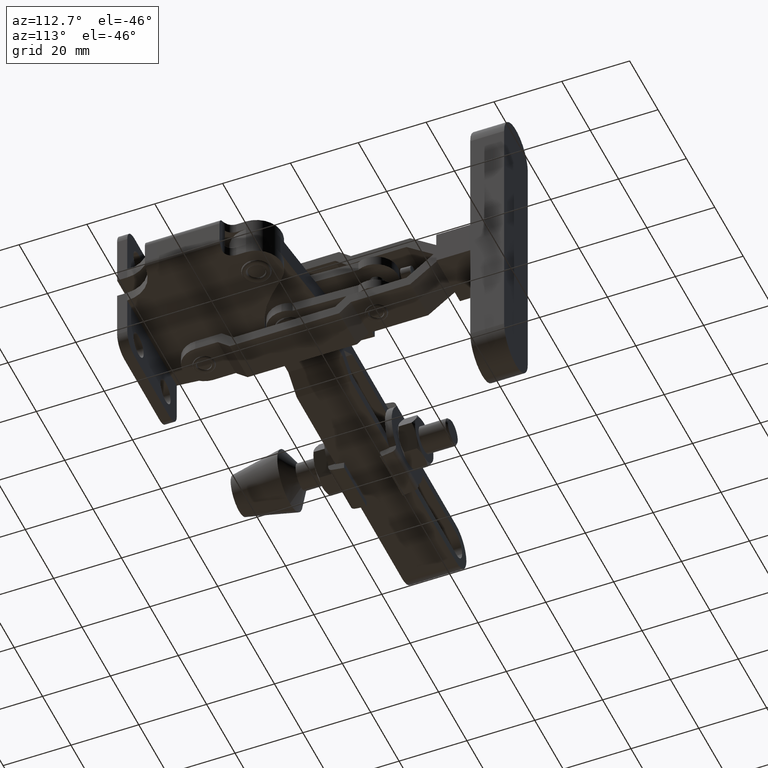
[diagram: clean part render]
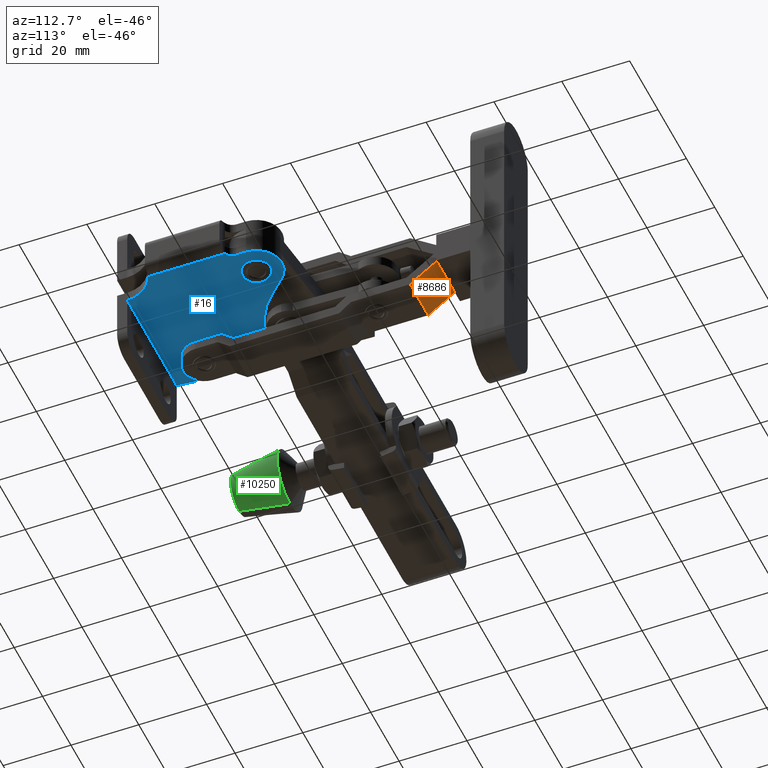
[diagram: same view with three faces highlighted in distinct colors, each labeled with its STEP entity id]
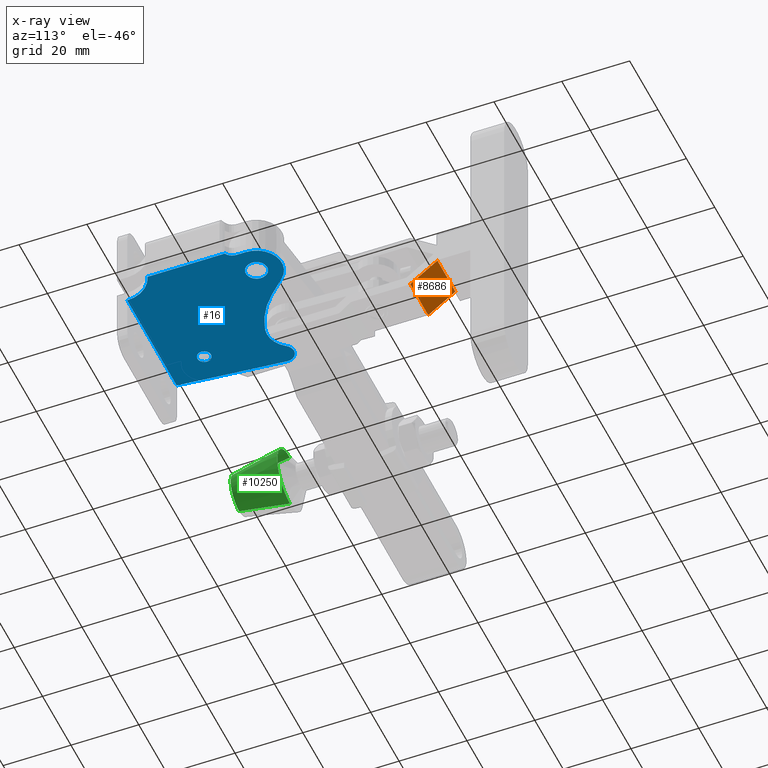
[diagram: x-ray of the same camera — body ghosted, the three highlighted faces saturated]
A machine part, auxiliary view with three faces highlighted in distinct colors.
The next image is the same camera in x-ray (body ghosted, the three faces saturated) — at least one of them is partly hidden behind the body in this view.
Their STEP definitions:

[orange] entity #8686 — the highlighted planar face has unit normal (-0, 0.6, -0.8).
#108 = EDGE_LOOP ( 'NONE', ( #10849, #278, #262, #10062 ) ) ;
#262 = ORIENTED_EDGE ( 'NONE', *, *, #3613, .T. ) ;
#278 = ORIENTED_EDGE ( 'NONE', *, *, #4626, .F. ) ;
#288 = DIRECTION ( 'NONE',  ( -1.000000000000000000, 0.0000000000000000000, 1.658530013599391000E-018 ) ) ;
#435 = CARTESIAN_POINT ( 'NONE',  ( -30.45000000000017300, 85.48999999999986700, -3.000000000000014200 ) ) ;
#799 = VERTEX_POINT ( 'NONE', #907 ) ;
#907 = CARTESIAN_POINT ( 'NONE',  ( -30.45000000000017300, 85.48999999999986700, -3.000000000000014200 ) ) ;
#1060 = FACE_OUTER_BOUND ( 'NONE', #108, .T. ) ;
#1260 = VECTOR ( 'NONE', #288, 1000.000000000000000 ) ;
#1384 = CARTESIAN_POINT ( 'NONE',  ( -30.45000000000017300, 77.49000000000022200, -9.000000000000012400 ) ) ;
#1441 = CARTESIAN_POINT ( 'NONE',  ( -30.45000000000017300, 10.21461866664727400, -59.45653600001685400 ) ) ;
#2063 = VERTEX_POINT ( 'NONE', #5368 ) ;
#2276 = DIRECTION ( 'NONE',  ( -9.951180081596616200E-019, -0.7999999999999878300, -0.6000000000000161900 ) ) ;
#2336 = CARTESIAN_POINT ( 'NONE',  ( -30.45000000000017300, 77.49000000000022200, -9.000000000000012400 ) ) ;
#2382 = DIRECTION ( 'NONE',  ( -1.000000000000000000, 0.0000000000000000000, 1.658530013599391000E-018 ) ) ;
#2540 = LINE ( 'NONE', #4751, #4537 ) ;
#2884 = VECTOR ( 'NONE', #6022, 1000.000000000000100 ) ;
#3167 = VECTOR ( 'NONE', #2382, 1000.000000000000000 ) ;
#3234 = AXIS2_PLACEMENT_3D ( 'NONE', #1441, #7407, #2276 ) ;
#3506 = LINE ( 'NONE', #435, #1260 ) ;
#3613 = EDGE_CURVE ( 'NONE', #799, #6061, #5131, .T. ) ;
#3773 = DIRECTION ( 'NONE',  ( -9.951180081596616200E-019, -0.7999999999999878300, -0.6000000000000161900 ) ) ;
#3944 = PLANE ( 'NONE',  #3234 ) ;
#4537 = VECTOR ( 'NONE', #3773, 1000.000000000000100 ) ;
#4626 = EDGE_CURVE ( 'NONE', #799, #5966, #3506, .T. ) ;
#4751 = CARTESIAN_POINT ( 'NONE',  ( -43.15000000000017600, 10.21461866664727400, -59.45653600001685400 ) ) ;
#5131 = LINE ( 'NONE', #8088, #2884 ) ;
#5368 = CARTESIAN_POINT ( 'NONE',  ( -43.15000000000017600, 77.49000000000022200, -9.000000000000012400 ) ) ;
#5966 = VERTEX_POINT ( 'NONE', #7546 ) ;
#6022 = DIRECTION ( 'NONE',  ( -9.951180081596616200E-019, -0.7999999999999878300, -0.6000000000000161900 ) ) ;
#6061 = VERTEX_POINT ( 'NONE', #1384 ) ;
#6163 = EDGE_CURVE ( 'NONE', #5966, #2063, #2540, .T. ) ;
#6898 = EDGE_CURVE ( 'NONE', #6061, #2063, #7471, .T. ) ;
#7407 = DIRECTION ( 'NONE',  ( -1.326824010879492700E-018, 0.6000000000000161900, -0.7999999999999878300 ) ) ;
#7471 = LINE ( 'NONE', #2336, #3167 ) ;
#7546 = CARTESIAN_POINT ( 'NONE',  ( -43.15000000000017600, 85.48999999999986700, -3.000000000000014200 ) ) ;
#8088 = CARTESIAN_POINT ( 'NONE',  ( -30.45000000000017300, 10.21461866664727400, -59.45653600001685400 ) ) ;
#8686 = ADVANCED_FACE ( 'NONE', ( #1060 ), #3944, .T. ) ;
#10062 = ORIENTED_EDGE ( 'NONE', *, *, #6898, .T. ) ;
#10849 = ORIENTED_EDGE ( 'NONE', *, *, #6163, .F. ) ;

[blue] entity #16 — the highlighted planar face has unit normal (0, 0, 1).
#16 = ADVANCED_FACE ( 'NONE', ( #9444, #5098, #2852 ), #2983, .F. ) ;
#25 = EDGE_CURVE ( 'NONE', #4474, #10773, #5695, .T. ) ;
#26 = CARTESIAN_POINT ( 'NONE',  ( -17.62027709120572900, 44.98368558600440500, -6.000000000000000000 ) ) ;
#105 = ORIENTED_EDGE ( 'NONE', *, *, #2499, .F. ) ;
#179 = CARTESIAN_POINT ( 'NONE',  ( -44.00000000000004300, 3.000000000000002700, -6.000000000000000000 ) ) ;
#202 = DIRECTION ( 'NONE',  ( 0.09966041305298248300, -0.9950215083454774200, -0.0000000000000000000 ) ) ;
#299 = CARTESIAN_POINT ( 'NONE',  ( -40.30000000000044500, 57.43999999999993400, -6.000000000000000000 ) ) ;
#377 = VERTEX_POINT ( 'NONE', #10368 ) ;
#567 = DIRECTION ( 'NONE',  ( 0.0000000000000000000, 0.0000000000000000000, 1.000000000000000000 ) ) ;
#579 = VECTOR ( 'NONE', #8580, 1000.000000000000000 ) ;
#602 = AXIS2_PLACEMENT_3D ( 'NONE', #299, #8090, #6052 ) ;
#716 = CIRCLE ( 'NONE', #3988, 8.999999999999952000 ) ;
#723 = EDGE_CURVE ( 'NONE', #2154, #9556, #2240, .T. ) ;
#747 = DIRECTION ( 'NONE',  ( 0.0000000000000000000, 0.0000000000000000000, 1.000000000000000000 ) ) ;
#821 = DIRECTION ( 'NONE',  ( 1.000000000000000000, 0.0000000000000000000, 0.0000000000000000000 ) ) ;
#858 = LINE ( 'NONE', #6730, #2887 ) ;
#888 = ORIENTED_EDGE ( 'NONE', *, *, #1419, .F. ) ;
#904 = AXIS2_PLACEMENT_3D ( 'NONE', #9474, #747, #10589 ) ;
#913 = EDGE_CURVE ( 'NONE', #3755, #4474, #4637, .T. ) ;
#915 = DIRECTION ( 'NONE',  ( -0.0000000000000000000, -0.0000000000000000000, -1.000000000000000000 ) ) ;
#916 = VERTEX_POINT ( 'NONE', #1338 ) ;
#1027 = DIRECTION ( 'NONE',  ( -1.000000000000000000, 0.0000000000000000000, -1.988221748970534300E-016 ) ) ;
#1069 = AXIS2_PLACEMENT_3D ( 'NONE', #7163, #567, #9602 ) ;
#1180 = CARTESIAN_POINT ( 'NONE',  ( -41.69559368669180800, 36.23921757565292300, -6.000000000000000000 ) ) ;
#1287 = VERTEX_POINT ( 'NONE', #4157 ) ;
#1338 = CARTESIAN_POINT ( 'NONE',  ( -34.80000000000016800, 14.09999999999989100, -6.000000000000000000 ) ) ;
#1419 = EDGE_CURVE ( 'NONE', #6787, #9343, #6365, .T. ) ;
#1504 = AXIS2_PLACEMENT_3D ( 'NONE', #8398, #7880, #2020 ) ;
#1598 = CIRCLE ( 'NONE', #3651, 3.149999999999999900 ) ;
#2020 = DIRECTION ( 'NONE',  ( 1.000000000000000000, 0.0000000000000000000, -0.0000000000000000000 ) ) ;
#2149 = DIRECTION ( 'NONE',  ( 0.0000000000000000000, 0.0000000000000000000, -1.000000000000000000 ) ) ;
#2154 = VERTEX_POINT ( 'NONE', #2820 ) ;
#2240 = LINE ( 'NONE', #10974, #6506 ) ;
#2272 = EDGE_CURVE ( 'NONE', #2154, #8201, #716, .T. ) ;
#2283 = CARTESIAN_POINT ( 'NONE',  ( -4.700000000000148500, 39.79999999999994700, -6.000000000000000000 ) ) ;
#2323 = VERTEX_POINT ( 'NONE', #2283 ) ;
#2499 = EDGE_CURVE ( 'NONE', #2323, #377, #4060, .T. ) ;
#2681 = CIRCLE ( 'NONE', #4663, 2.000000000000001800 ) ;
#2820 = CARTESIAN_POINT ( 'NONE',  ( -9.099999999999719000, 3.000000000000000000, -5.999999999999998200 ) ) ;
#2852 = FACE_BOUND ( 'NONE', #3680, .T. ) ;
#2887 = VECTOR ( 'NONE', #8461, 1000.000000000000000 ) ;
#2928 = VERTEX_POINT ( 'NONE', #7013 ) ;
#2983 = PLANE ( 'NONE',  #1504 ) ;
#3133 = CARTESIAN_POINT ( 'NONE',  ( -15.34999999999998900, 39.79999999999994700, -5.999999999999998200 ) ) ;
#3165 = ORIENTED_EDGE ( 'NONE', *, *, #6934, .F. ) ;
#3237 = EDGE_CURVE ( 'NONE', #1287, #8201, #7447, .T. ) ;
#3317 = EDGE_LOOP ( 'NONE', ( #8748, #4551 ) ) ;
#3352 = CIRCLE ( 'NONE', #5149, 3.000000000000058200 ) ;
#3387 = CARTESIAN_POINT ( 'NONE',  ( -33.56368271917250500, 33.36465930683400000, -6.000000000000000000 ) ) ;
#3651 = AXIS2_PLACEMENT_3D ( 'NONE', #8442, #8404, #8364 ) ;
#3675 = CARTESIAN_POINT ( 'NONE',  ( -44.00000000000004300, 3.000000000000002700, -6.000000000000000000 ) ) ;
#3680 = EDGE_LOOP ( 'NONE', ( #5375, #9027 ) ) ;
#3741 = EDGE_LOOP ( 'NONE', ( #4020, #7989, #10507, #4555, #6522, #5959, #8583, #888, #3165, #105, #8534, #9297 ) ) ;
#3755 = VERTEX_POINT ( 'NONE', #1180 ) ;
#3946 = CARTESIAN_POINT ( 'NONE',  ( -47.14000000000029900, 34.49999999999997200, -6.000000000000000000 ) ) ;
#3947 = CARTESIAN_POINT ( 'NONE',  ( -12.19999999999998900, 39.79999999999994700, -6.000000000000000000 ) ) ;
#3988 = AXIS2_PLACEMENT_3D ( 'NONE', #8636, #915, #4303 ) ;
#4009 = AXIS2_PLACEMENT_3D ( 'NONE', #7262, #2149, #8120 ) ;
#4020 = ORIENTED_EDGE ( 'NONE', *, *, #3237, .T. ) ;
#4060 = CIRCLE ( 'NONE', #7240, 7.499999999999925400 ) ;
#4157 = CARTESIAN_POINT ( 'NONE',  ( -3.000000000000113700, 34.29629883308084700, -6.000000000000000000 ) ) ;
#4303 = DIRECTION ( 'NONE',  ( 1.000000000000000000, 0.0000000000000000000, 0.0000000000000000000 ) ) ;
#4474 = VERTEX_POINT ( 'NONE', #3946 ) ;
#4516 = AXIS2_PLACEMENT_3D ( 'NONE', #10617, #10557, #10467 ) ;
#4551 = ORIENTED_EDGE ( 'NONE', *, *, #6790, .T. ) ;
#4555 = ORIENTED_EDGE ( 'NONE', *, *, #6681, .F. ) ;
#4559 = CARTESIAN_POINT ( 'NONE',  ( -1.700000000000034800, 37.00000000000003600, -6.000000000000000000 ) ) ;
#4587 = LINE ( 'NONE', #26, #9169 ) ;
#4637 = CIRCLE ( 'NONE', #1069, 3.000000000000231800 ) ;
#4663 = AXIS2_PLACEMENT_3D ( 'NONE', #10687, #6111, #8876 ) ;
#4885 = CIRCLE ( 'NONE', #8643, 3.149999999999999900 ) ;
#5098 = FACE_OUTER_BOUND ( 'NONE', #3741, .T. ) ;
#5149 = AXIS2_PLACEMENT_3D ( 'NONE', #4559, #5691, #5628 ) ;
#5245 = EDGE_CURVE ( 'NONE', #1287, #2928, #3352, .T. ) ;
#5375 = ORIENTED_EDGE ( 'NONE', *, *, #8632, .F. ) ;
#5628 = DIRECTION ( 'NONE',  ( 1.000000000000000000, 0.0000000000000000000, 0.0000000000000000000 ) ) ;
#5667 = CARTESIAN_POINT ( 'NONE',  ( -38.80000000000016800, 14.09999999999989100, -6.000000000000000000 ) ) ;
#5691 = DIRECTION ( 'NONE',  ( -0.0000000000000000000, -0.0000000000000000000, -1.000000000000000000 ) ) ;
#5695 = CIRCLE ( 'NONE', #904, 3.000000000000231800 ) ;
#5942 = DIRECTION ( 'NONE',  ( 0.0000000000000000000, 0.0000000000000000000, 1.000000000000000000 ) ) ;
#5959 = ORIENTED_EDGE ( 'NONE', *, *, #913, .F. ) ;
#6033 = EDGE_CURVE ( 'NONE', #916, #11262, #2681, .T. ) ;
#6052 = DIRECTION ( 'NONE',  ( 1.000000000000000000, 0.0000000000000000000, 0.0000000000000000000 ) ) ;
#6111 = DIRECTION ( 'NONE',  ( 0.0000000000000000000, 0.0000000000000000000, -1.000000000000000000 ) ) ;
#6340 = EDGE_CURVE ( 'NONE', #9343, #3755, #9545, .T. ) ;
#6365 = CIRCLE ( 'NONE', #602, 24.99999999999987900 ) ;
#6506 = VECTOR ( 'NONE', #1027, 1000.000000000000000 ) ;
#6522 = ORIENTED_EDGE ( 'NONE', *, *, #25, .F. ) ;
#6626 = CARTESIAN_POINT ( 'NONE',  ( -3.000000000000113700, 47.29999999999986900, -6.000000000000060400 ) ) ;
#6681 = EDGE_CURVE ( 'NONE', #10773, #9556, #10252, .T. ) ;
#6730 = CARTESIAN_POINT ( 'NONE',  ( -4.700000000000148500, 39.79999999999994700, -6.000000000000000000 ) ) ;
#6737 = CARTESIAN_POINT ( 'NONE',  ( -9.049999999999988300, 39.79999999999994700, -5.999999999999998200 ) ) ;
#6787 = VERTEX_POINT ( 'NONE', #9440 ) ;
#6790 = EDGE_CURVE ( 'NONE', #8168, #7805, #1598, .T. ) ;
#6934 = EDGE_CURVE ( 'NONE', #377, #6787, #4587, .T. ) ;
#7013 = CARTESIAN_POINT ( 'NONE',  ( -4.700000000000148500, 37.00000000000003600, -6.000000000000000000 ) ) ;
#7065 = VECTOR ( 'NONE', #202, 1000.000000000000000 ) ;
#7163 = CARTESIAN_POINT ( 'NONE',  ( -44.14000000000007200, 34.49999999999997200, -6.000000000000000000 ) ) ;
#7223 = CIRCLE ( 'NONE', #4009, 2.000000000000001800 ) ;
#7240 = AXIS2_PLACEMENT_3D ( 'NONE', #3947, #8268, #7368 ) ;
#7262 = CARTESIAN_POINT ( 'NONE',  ( -36.80000000000016800, 14.09999999999989100, -6.000000000000000000 ) ) ;
#7368 = DIRECTION ( 'NONE',  ( 1.000000000000000000, 0.0000000000000000000, 0.0000000000000000000 ) ) ;
#7447 = LINE ( 'NONE', #6626, #579 ) ;
#7805 = VERTEX_POINT ( 'NONE', #6737 ) ;
#7880 = DIRECTION ( 'NONE',  ( 0.0000000000000000000, 0.0000000000000000000, 1.000000000000000000 ) ) ;
#7989 = ORIENTED_EDGE ( 'NONE', *, *, #2272, .F. ) ;
#8090 = DIRECTION ( 'NONE',  ( -0.0000000000000000000, -0.0000000000000000000, -1.000000000000000000 ) ) ;
#8120 = DIRECTION ( 'NONE',  ( -1.000000000000000000, 0.0000000000000000000, 0.0000000000000000000 ) ) ;
#8168 = VERTEX_POINT ( 'NONE', #3133 ) ;
#8201 = VERTEX_POINT ( 'NONE', #10078 ) ;
#8268 = DIRECTION ( 'NONE',  ( 0.0000000000000000000, 0.0000000000000000000, 1.000000000000000000 ) ) ;
#8328 = DIRECTION ( 'NONE',  ( -0.6911580781339635700, -0.7227036121607293100, 0.0000000000000000000 ) ) ;
#8364 = DIRECTION ( 'NONE',  ( 1.000000000000000000, 0.0000000000000000000, 0.0000000000000000000 ) ) ;
#8398 = CARTESIAN_POINT ( 'NONE',  ( -12.19999999999998900, 39.79999999999994700, -6.000000000000000000 ) ) ;
#8404 = DIRECTION ( 'NONE',  ( 0.0000000000000000000, 0.0000000000000000000, 1.000000000000000000 ) ) ;
#8442 = CARTESIAN_POINT ( 'NONE',  ( -12.19999999999998900, 39.79999999999994700, -5.999999999999998200 ) ) ;
#8461 = DIRECTION ( 'NONE',  ( -0.0000000000000000000, 1.000000000000000000, -0.0000000000000000000 ) ) ;
#8534 = ORIENTED_EDGE ( 'NONE', *, *, #10385, .F. ) ;
#8580 = DIRECTION ( 'NONE',  ( -0.0000000000000000000, -1.000000000000000000, -0.0000000000000000000 ) ) ;
#8583 = ORIENTED_EDGE ( 'NONE', *, *, #6340, .F. ) ;
#8632 = EDGE_CURVE ( 'NONE', #11262, #916, #7223, .T. ) ;
#8636 = CARTESIAN_POINT ( 'NONE',  ( -0.1000000000002110300, 3.000000000000002700, -6.000000000000000000 ) ) ;
#8643 = AXIS2_PLACEMENT_3D ( 'NONE', #11268, #5942, #821 ) ;
#8748 = ORIENTED_EDGE ( 'NONE', *, *, #9879, .T. ) ;
#8876 = DIRECTION ( 'NONE',  ( -1.000000000000000000, 0.0000000000000000000, 0.0000000000000000000 ) ) ;
#9027 = ORIENTED_EDGE ( 'NONE', *, *, #6033, .F. ) ;
#9169 = VECTOR ( 'NONE', #8328, 1000.000000000000000 ) ;
#9297 = ORIENTED_EDGE ( 'NONE', *, *, #5245, .F. ) ;
#9343 = VERTEX_POINT ( 'NONE', #3387 ) ;
#9440 = CARTESIAN_POINT ( 'NONE',  ( -22.23240969598195700, 40.16104804665128800, -6.000000000000000000 ) ) ;
#9444 = FACE_BOUND ( 'NONE', #3317, .T. ) ;
#9474 = CARTESIAN_POINT ( 'NONE',  ( -44.14000000000007200, 34.49999999999997200, -6.000000000000000000 ) ) ;
#9545 = CIRCLE ( 'NONE', #4516, 7.499999999999905900 ) ;
#9556 = VERTEX_POINT ( 'NONE', #3675 ) ;
#9602 = DIRECTION ( 'NONE',  ( 1.000000000000000000, 0.0000000000000000000, 0.0000000000000000000 ) ) ;
#9879 = EDGE_CURVE ( 'NONE', #7805, #8168, #4885, .T. ) ;
#10078 = CARTESIAN_POINT ( 'NONE',  ( -3.000000000000113700, 11.51997652578924300, -6.000000000000060400 ) ) ;
#10252 = LINE ( 'NONE', #179, #7065 ) ;
#10368 = CARTESIAN_POINT ( 'NONE',  ( -17.62027709120572900, 44.98368558600440500, -6.000000000000000000 ) ) ;
#10385 = EDGE_CURVE ( 'NONE', #2928, #2323, #858, .T. ) ;
#10467 = DIRECTION ( 'NONE',  ( 1.000000000000000000, 0.0000000000000000000, 0.0000000000000000000 ) ) ;
#10507 = ORIENTED_EDGE ( 'NONE', *, *, #723, .T. ) ;
#10557 = DIRECTION ( 'NONE',  ( -0.0000000000000000000, -0.0000000000000000000, -1.000000000000000000 ) ) ;
#10589 = DIRECTION ( 'NONE',  ( 1.000000000000000000, 0.0000000000000000000, 0.0000000000000000000 ) ) ;
#10617 = CARTESIAN_POINT ( 'NONE',  ( -35.58457790342117700, 40.58726151478364800, -6.000000000000000000 ) ) ;
#10687 = CARTESIAN_POINT ( 'NONE',  ( -36.80000000000016800, 14.09999999999989100, -6.000000000000000000 ) ) ;
#10773 = VERTEX_POINT ( 'NONE', #11151 ) ;
#10974 = CARTESIAN_POINT ( 'NONE',  ( -9.099999999999719000, 3.000000000000000000, -5.999999999999998200 ) ) ;
#11151 = CARTESIAN_POINT ( 'NONE',  ( -47.12506452503702500, 34.20101876084079600, -6.000000000000000000 ) ) ;
#11262 = VERTEX_POINT ( 'NONE', #5667 ) ;
#11268 = CARTESIAN_POINT ( 'NONE',  ( -12.19999999999998900, 39.79999999999994700, -5.999999999999998200 ) ) ;

[green] entity #10250 — the highlighted conical surface has half-angle 11.31 deg.
#401 = DIRECTION ( 'NONE',  ( 0.0000000000000000000, 1.000000000000000000, 0.0000000000000000000 ) ) ;
#628 = CARTESIAN_POINT ( 'NONE',  ( -94.37569315383768800, 0.2999999999995207600, -5.999999999999967100 ) ) ;
#700 = LINE ( 'NONE', #6957, #4979 ) ;
#724 = CONICAL_SURFACE ( 'NONE', #9503, 6.000000000000000000, 0.1973955598498806600 ) ;
#846 = VECTOR ( 'NONE', #4433, 1000.000000000000000 ) ;
#1006 = DIRECTION ( 'NONE',  ( -0.0000000000000000000, -1.000000000000000000, -0.0000000000000000000 ) ) ;
#1281 = ORIENTED_EDGE ( 'NONE', *, *, #3752, .F. ) ;
#1670 = ORIENTED_EDGE ( 'NONE', *, *, #4754, .T. ) ;
#2184 = CIRCLE ( 'NONE', #4650, 9.000000000000000000 ) ;
#2388 = CARTESIAN_POINT ( 'NONE',  ( -94.37569315383768800, 15.29999999999952100, 9.000000000000032000 ) ) ;
#2400 = EDGE_CURVE ( 'NONE', #10718, #10616, #10049, .T. ) ;
#2563 = EDGE_CURVE ( 'NONE', #5316, #3992, #700, .T. ) ;
#3704 = CARTESIAN_POINT ( 'NONE',  ( -94.37569315383768800, 0.2999999999995207600, 3.295974604355933500E-014 ) ) ;
#3752 = EDGE_CURVE ( 'NONE', #10718, #5316, #6611, .T. ) ;
#3874 = CARTESIAN_POINT ( 'NONE',  ( -94.37569315383768800, 15.29999999999952100, -8.999999999999966200 ) ) ;
#3992 = VERTEX_POINT ( 'NONE', #2388 ) ;
#4080 = FACE_OUTER_BOUND ( 'NONE', #10993, .T. ) ;
#4433 = DIRECTION ( 'NONE',  ( 2.401729971581267900E-017, 0.9805806756909202200, -0.1961161351381839900 ) ) ;
#4650 = AXIS2_PLACEMENT_3D ( 'NONE', #5033, #1006, #5451 ) ;
#4735 = CARTESIAN_POINT ( 'NONE',  ( -94.37569315383768800, 0.2999999999995207600, 3.295974604355933500E-014 ) ) ;
#4754 = EDGE_CURVE ( 'NONE', #10616, #3992, #2184, .T. ) ;
#4979 = VECTOR ( 'NONE', #8654, 1000.000000000000000 ) ;
#5033 = CARTESIAN_POINT ( 'NONE',  ( -94.37569315383768800, 15.29999999999952100, 3.295974604355933500E-014 ) ) ;
#5316 = VERTEX_POINT ( 'NONE', #5939 ) ;
#5451 = DIRECTION ( 'NONE',  ( 0.0000000000000000000, 0.0000000000000000000, -1.000000000000000000 ) ) ;
#5681 = ORIENTED_EDGE ( 'NONE', *, *, #2400, .T. ) ;
#5939 = CARTESIAN_POINT ( 'NONE',  ( -94.37569315383768800, 0.2999999999995207600, 6.000000000000032900 ) ) ;
#6055 = DIRECTION ( 'NONE',  ( -0.0000000000000000000, -1.000000000000000000, -0.0000000000000000000 ) ) ;
#6611 = CIRCLE ( 'NONE', #8387, 6.000000000000000000 ) ;
#6957 = CARTESIAN_POINT ( 'NONE',  ( -94.37569315383768800, 0.2999999999995207600, 6.000000000000032900 ) ) ;
#7935 = CARTESIAN_POINT ( 'NONE',  ( -94.37569315383768800, 0.2999999999995207600, -5.999999999999967100 ) ) ;
#8387 = AXIS2_PLACEMENT_3D ( 'NONE', #3704, #6055, #10541 ) ;
#8654 = DIRECTION ( 'NONE',  ( 0.0000000000000000000, 0.9805806756909202200, 0.1961161351381839900 ) ) ;
#9503 = AXIS2_PLACEMENT_3D ( 'NONE', #4735, #401, #10881 ) ;
#10049 = LINE ( 'NONE', #7935, #846 ) ;
#10250 = ADVANCED_FACE ( 'NONE', ( #4080 ), #724, .T. ) ;
#10432 = ORIENTED_EDGE ( 'NONE', *, *, #2563, .F. ) ;
#10541 = DIRECTION ( 'NONE',  ( 0.0000000000000000000, 0.0000000000000000000, -1.000000000000000000 ) ) ;
#10616 = VERTEX_POINT ( 'NONE', #3874 ) ;
#10718 = VERTEX_POINT ( 'NONE', #628 ) ;
#10881 = DIRECTION ( 'NONE',  ( 0.0000000000000000000, 0.0000000000000000000, 1.000000000000000000 ) ) ;
#10993 = EDGE_LOOP ( 'NONE', ( #1281, #5681, #1670, #10432 ) ) ;